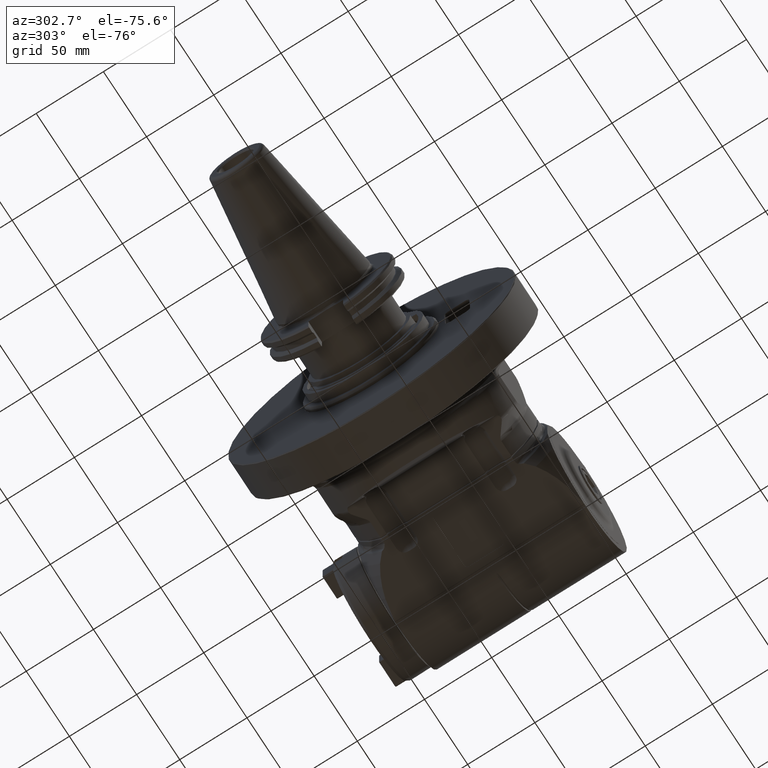
[diagram: clean part render]
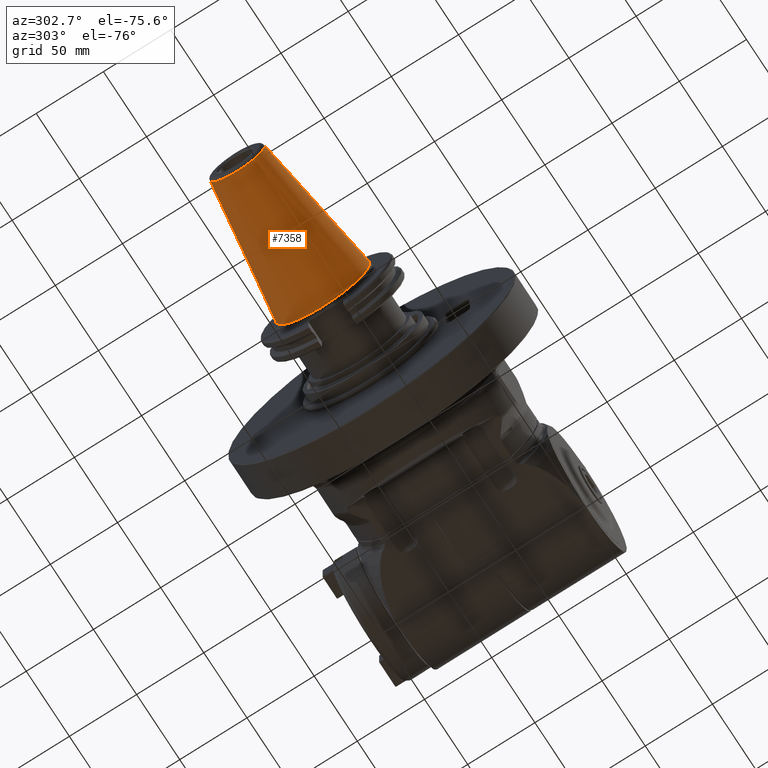
[diagram: same view with one face highlighted and labeled with its STEP entity id]
A machine part, auxiliary view. The second image highlights one B-rep face of the part: STEP entity #7358.
In plain terms, the highlighted conical surface has half-angle 8.297 deg.
Its self-contained STEP definition (entity closure, byte-faithful):
#372=CONICAL_SURFACE('',#7928,27.67265681028,0.144812411498922);
#490=FACE_OUTER_BOUND('',#960,.T.);
#960=EDGE_LOOP('',(#4973,#4974,#4975,#4976,#4977,#4978));
#1494=CIRCLE('',#7926,34.925);
#1495=CIRCLE('',#7927,34.925);
#1496=CIRCLE('',#7929,20.42031362057);
#1497=CIRCLE('',#7930,20.42031362057);
#1916=LINE('',#11266,#2416);
#2416=VECTOR('',#8919,27.67265681028);
#3044=VERTEX_POINT('',#11259);
#3045=VERTEX_POINT('',#11260);
#3046=VERTEX_POINT('',#11265);
#3047=VERTEX_POINT('',#11267);
#3785=EDGE_CURVE('',#3044,#3045,#1494,.T.);
#3787=EDGE_CURVE('',#3045,#3044,#1495,.T.);
#3788=EDGE_CURVE('',#3044,#3046,#1916,.T.);
#3789=EDGE_CURVE('',#3047,#3046,#1496,.T.);
#3790=EDGE_CURVE('',#3046,#3047,#1497,.T.);
#4973=ORIENTED_EDGE('',*,*,#3785,.F.);
#4974=ORIENTED_EDGE('',*,*,#3788,.T.);
#4975=ORIENTED_EDGE('',*,*,#3789,.F.);
#4976=ORIENTED_EDGE('',*,*,#3790,.F.);
#4977=ORIENTED_EDGE('',*,*,#3788,.F.);
#4978=ORIENTED_EDGE('',*,*,#3787,.F.);
#7358=ADVANCED_FACE('',(#490),#372,.T.);
#7926=AXIS2_PLACEMENT_3D('',#11261,#8912,#8913);
#7927=AXIS2_PLACEMENT_3D('',#11263,#8915,#8916);
#7928=AXIS2_PLACEMENT_3D('',#11264,#8917,#8918);
#7929=AXIS2_PLACEMENT_3D('',#11268,#8920,#8921);
#7930=AXIS2_PLACEMENT_3D('',#11269,#8922,#8923);
#8912=DIRECTION('center_axis',(1.,0.,0.));
#8913=DIRECTION('ref_axis',(0.,0.,-1.));
#8915=DIRECTION('center_axis',(1.,0.,0.));
#8916=DIRECTION('ref_axis',(0.,0.,-1.));
#8917=DIRECTION('center_axis',(1.,0.,0.));
#8918=DIRECTION('ref_axis',(0.,0.,-1.));
#8919=DIRECTION('',(-0.98953299358046,1.76724869581176E-17,-0.144306807239621));
#8920=DIRECTION('center_axis',(-1.,0.,0.));
#8921=DIRECTION('ref_axis',(0.,0.,-1.));
#8922=DIRECTION('center_axis',(-1.,0.,0.));
#8923=DIRECTION('ref_axis',(0.,0.,-1.));
#11259=CARTESIAN_POINT('',(9.947598300641E-14,0.,34.925));
#11260=CARTESIAN_POINT('',(3.99194566291783E-13,-4.27707894602227E-15,-34.9250000000012));
#11261=CARTESIAN_POINT('Origin',(8.526512829121E-14,0.,0.));
#11263=CARTESIAN_POINT('Origin',(8.526512829121E-14,0.,0.));
#11264=CARTESIAN_POINT('Origin',(-49.73038350905,0.,0.));
#11265=CARTESIAN_POINT('',(-99.4607670180991,-2.50076717130085E-15,20.4203136205638));
#11266=CARTESIAN_POINT('',(-49.73038350905,-3.38892305866126E-15,27.67265681028));
#11267=CARTESIAN_POINT('',(-99.4607670181,20.42031362057,2.50076717130162E-15));
#11268=CARTESIAN_POINT('Origin',(-99.4607670181,0.,0.));
#11269=CARTESIAN_POINT('Origin',(-99.4607670181,0.,0.));